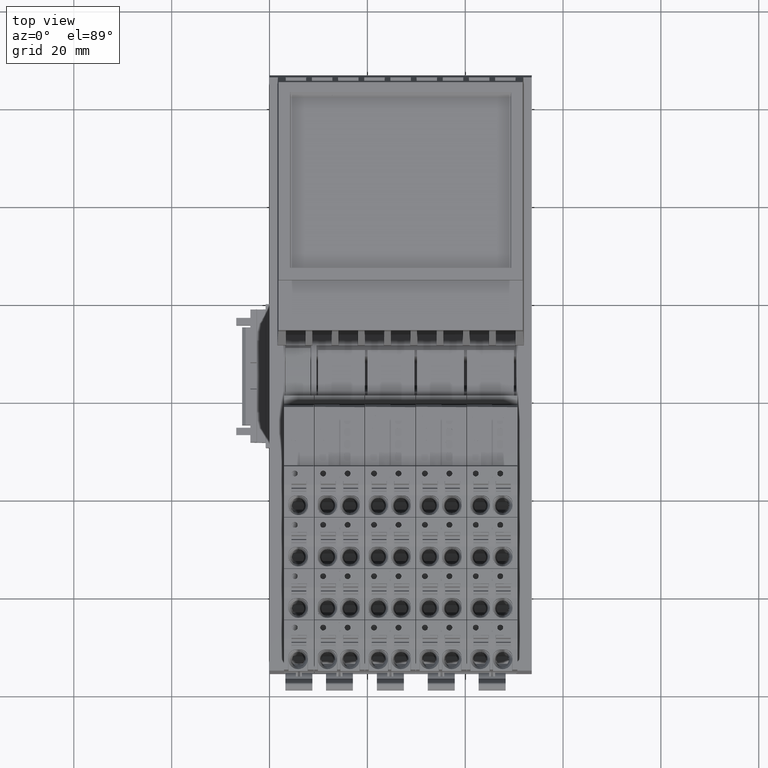
[diagram: clean part render]
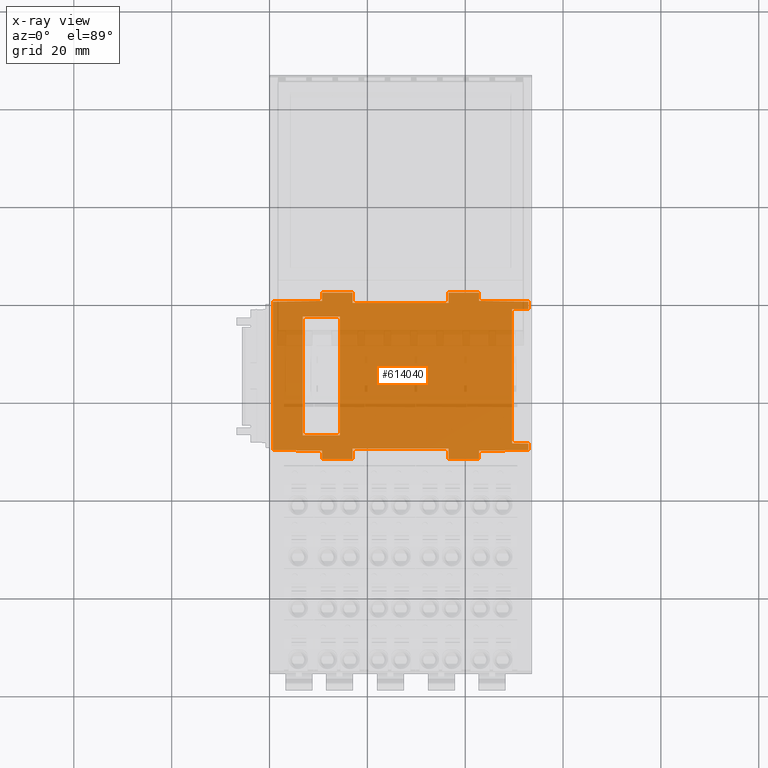
[diagram: x-ray — body ghosted, one internal face saturated and labeled with its STEP entity id]
A machine part, top view, then the same camera in x-ray: the body is ghosted and one INTERNAL B-rep face — a face not visible from any outside direction — is saturated and labeled: STEP entity #614040.
In plain terms, the highlighted planar face has unit normal (-0, 0, -1).
Its self-contained STEP definition (entity closure, byte-faithful):
#438050=CARTESIAN_POINT('',(12.0636000299226,3.00000000013541,
41.8499994326494));
#438060=VERTEX_POINT('',#438050);
#438090=CARTESIAN_POINT('',(12.0636000299226,3.00000000001806,0.));
#438100=DIRECTION('',(0.,0.,-1.));
#438110=VECTOR('',#438100,1.);
#438120=LINE('',#438090,#438110);
#438130=CARTESIAN_POINT('',(12.0636000299226,3.00000000014778,
49.4000005080898));
#438140=VERTEX_POINT('',#438130);
#438150=EDGE_CURVE('',#438140,#438060,#438120,.T.);
#438930=CARTESIAN_POINT('',(0.,3.00000000033756,3.29999998018775));
#438940=DIRECTION('',(1.,-2.19914054171354E-11,0.));
#438950=VECTOR('',#438940,1.);
#438960=LINE('',#438930,#438950);
#438970=CARTESIAN_POINT('',(-15.2364005170704,3.00000000067263,
3.29999998018815));
#438980=VERTEX_POINT('',#438970);
#438990=CARTESIAN_POINT('',(-13.7651986355336,3.00000000064027,
3.29999998018775));
#439000=VERTEX_POINT('',#438990);
#439010=EDGE_CURVE('',#438980,#439000,#438960,.T.);
#440250=CARTESIAN_POINT('',(-13.7363999718254,3.00000000064504,
6.59999998004287));
#440260=VERTEX_POINT('',#440250);
#440290=CARTESIAN_POINT('',(-13.7765435634887,3.00000000001806,2.));
#440300=DIRECTION('',(-0.00872653549837341,0.,-0.999961923064171));
#440310=VECTOR('',#440300,1.);
#440320=LINE('',#440290,#440310);
#440330=EDGE_CURVE('',#440260,#439000,#440320,.T.);
#445730=CARTESIAN_POINT('',(-12.2364002400526,3.00000000068217,
49.4000005116926));
#445740=VERTEX_POINT('',#445730);
#445770=CARTESIAN_POINT('',(-12.2364002486253,3.00000000001806,0.));
#445780=DIRECTION('',(1.73536011944371E-10,0.,1.));
#445790=VECTOR('',#445780,1.);
#445800=LINE('',#445770,#445790);
#445810=CARTESIAN_POINT('',(-12.2364002413628,3.0000000006698,
41.849999436867));
#445820=VERTEX_POINT('',#445810);
#445830=EDGE_CURVE('',#445820,#445740,#445800,.T.);
#446730=CARTESIAN_POINT('',(0.,3.00000000041307,49.4000005098784));
#446740=DIRECTION('',(1.,-2.19914054173783E-11,-1.48263795061431E-10));
#446750=VECTOR('',#446740,1.);
#446760=LINE('',#446730,#446750);
#446770=EDGE_CURVE('',#445740,#438140,#446760,.T.);
#452750=CARTESIAN_POINT('',(0.,3.0000000004007,41.8499994347432));
#452760=DIRECTION('',(1.,-2.19914054174198E-11,-1.73564604752226E-10));
#452770=VECTOR('',#452760,1.);
#452780=LINE('',#452750,#452770);
#452790=EDGE_CURVE('',#445820,#438060,#452780,.T.);
#475480=CARTESIAN_POINT('',(14.8132952578406,3.00000000007062,
39.2134579026107));
#475490=VERTEX_POINT('',#475480);
#476490=CARTESIAN_POINT('',(16.9088076921313,3.00000000002454,
39.2134579022762));
#476500=VERTEX_POINT('',#476490);
#476530=CARTESIAN_POINT('',(0.,3.00000000039639,39.2134579049748));
#476540=DIRECTION('',(-1.,2.19914054173969E-11,1.59598958123951E-10));
#476550=VECTOR('',#476540,1.);
#476560=LINE('',#476530,#476550);
#476570=EDGE_CURVE('',#476500,#475490,#476560,.T.);
#477290=CARTESIAN_POINT('',(15.0636419633857,3.00000000009179,
55.4999999797727));
#477300=VERTEX_POINT('',#477290);
#477330=CARTESIAN_POINT('',(16.032398064806,2.99999999997958,0.));
#477340=DIRECTION('',(-0.0174524064058977,2.02163620304832E-12,
0.999847695156939));
#477350=VECTOR('',#477340,1.);
#477360=LINE('',#477330,#477350);
#477370=CARTESIAN_POINT('',(15.2390653655859,3.00000000007147,
45.4499999805097));
#477380=VERTEX_POINT('',#477370);
#477390=EDGE_CURVE('',#477380,#477300,#477360,.T.);
#480420=CARTESIAN_POINT('',(-17.0903517184606,3.00000000072986,
13.3499999853127));
#480430=VERTEX_POINT('',#480420);
#480460=CARTESIAN_POINT('',(-17.1089880528678,3.0000000007084,
-2.45712130297309E-12));
#480470=DIRECTION('',(-0.00139597874673515,-1.60737983858319E-12,
-0.999999025621195));
#480480=VECTOR('',#480470,1.);
#480490=LINE('',#480460,#480480);
#480500=CARTESIAN_POINT('',(-17.0816456297798,3.00000000073988,
19.5865420659704));
#480510=VERTEX_POINT('',#480500);
#480520=EDGE_CURVE('',#480510,#480430,#480490,.T.);
#483630=CARTESIAN_POINT('',(-15.4118180944141,3.00000000074553,
45.449999986615));
#483640=VERTEX_POINT('',#483630);
#483670=CARTESIAN_POINT('',(-16.2051507951699,3.00000000068852,0.));
#483680=DIRECTION('',(0.0174524064373267,1.25403050923322E-12,
0.99984769515639));
#483690=VECTOR('',#483680,1.);
#483700=LINE('',#483670,#483690);
#483710=CARTESIAN_POINT('',(-15.2363946919051,3.00000000075813,
55.4999999854648));
#483720=VERTEX_POINT('',#483710);
#483730=EDGE_CURVE('',#483640,#483720,#483700,.T.);
#491490=CARTESIAN_POINT('',(13.7136000219277,3.00000000004138,
6.59999998004288));
#491500=VERTEX_POINT('',#491490);
#491530=CARTESIAN_POINT('',(0.,3.00000000034296,6.59999998004287));
#491540=DIRECTION('',(1.,-2.19914054171354E-11,0.));
#491550=VECTOR('',#491540,1.);
#491560=LINE('',#491530,#491550);
#491570=EDGE_CURVE('',#440260,#491500,#491560,.T.);
#523120=CARTESIAN_POINT('',(-15.1787636929297,3.00000000066595,0.));
#523130=DIRECTION('',(0.0174630410354328,-2.02186842219055E-12,
-0.999847509472217));
#523140=VECTOR('',#523130,1.);
#523150=LINE('',#523120,#523140);
#523160=CARTESIAN_POINT('',(-15.4119308462738,3.00000000069295,
13.3499999850448));
#523170=VERTEX_POINT('',#523160);
#523180=EDGE_CURVE('',#523170,#438980,#523150,.T.);
#560990=CARTESIAN_POINT('',(0.,3.00000000042306,55.4999999826025));
#561000=DIRECTION('',(-1.,2.19914054174432E-11,1.87860272533578E-10));
#561010=VECTOR('',#561000,1.);
#561020=LINE('',#560990,#561010);
#561030=EDGE_CURVE('',#477300,#483720,#561020,.T.);
#563130=CARTESIAN_POINT('',(14.8132952578429,3.00000000000639,0.));
#563140=DIRECTION('',(-5.72030444265809E-14,1.63808086864999E-12,1.));
#563150=VECTOR('',#563140,1.);
#563160=LINE('',#563130,#563150);
#563170=CARTESIAN_POINT('',(14.8132952578417,3.00000000003847,
19.5865420584575));
#563180=VERTEX_POINT('',#563170);
#563190=EDGE_CURVE('',#563180,#475490,#563160,.T.);
#563950=CARTESIAN_POINT('',(15.2391303615016,3.00000000001889,
13.349999980153));
#563960=VERTEX_POINT('',#563950);
#563990=CARTESIAN_POINT('',(15.0059632062174,3.00000000000215,0.));
#564000=DIRECTION('',(-0.0174630411870847,-1.25379594596782E-12,
-0.999847509469568));
#564010=VECTOR('',#564000,1.);
#564020=LINE('',#563990,#564010);
#564030=CARTESIAN_POINT('',(15.0636000308561,3.00000000000629,
3.29999998003107));
#564040=VERTEX_POINT('',#564030);
#564050=EDGE_CURVE('',#563960,#564040,#564020,.T.);
#564360=CARTESIAN_POINT('',(16.9088456967345,2.99999999999239,
19.5865420583375));
#564370=VERTEX_POINT('',#564360);
#565210=CARTESIAN_POINT('',(0.,3.00000000036423,19.5865420593056));
#565220=DIRECTION('',(-1.,2.19914054172292E-11,5.72539430343139E-11));
#565230=VECTOR('',#565220,1.);
#565240=LINE('',#565210,#565230);
#565250=EDGE_CURVE('',#564370,#563180,#565240,.T.);
#568210=CARTESIAN_POINT('',(0.,3.00000000033756,3.29999998003106));
#568220=DIRECTION('',(1.,-2.19914054171354E-11,0.));
#568230=VECTOR('',#568220,1.);
#568240=LINE('',#568210,#568230);
#568250=CARTESIAN_POINT('',(13.7712017356642,3.00000000003471,
3.29999998003106));
#568260=VERTEX_POINT('',#568250);
#568270=EDGE_CURVE('',#568260,#564040,#568240,.T.);
#568820=CARTESIAN_POINT('',(13.8288034490519,3.00000000001806,0.));
#568830=DIRECTION('',(-0.0174524062777089,0.,0.999847695159177));
#568840=VECTOR('',#568830,1.);
#568850=LINE('',#568820,#568840);
#568860=EDGE_CURVE('',#568260,#491500,#568850,.T.);
#600740=CARTESIAN_POINT('',(-14.9860957385915,3.00000000072595,
39.2134579073666));
#600750=VERTEX_POINT('',#600740);
#600830=CARTESIAN_POINT('',(-14.9860957419981,3.0000000006938,
19.58654206547));
#600840=VERTEX_POINT('',#600830);
#600870=CARTESIAN_POINT('',(-14.9860957454201,3.00000000001806,0.));
#600880=DIRECTION('',(1.73507257025058E-10,0.,1.));
#600890=VECTOR('',#600880,1.);
#600900=LINE('',#600870,#600890);
#600910=EDGE_CURVE('',#600840,#600750,#600900,.T.);
#602110=CARTESIAN_POINT('',(-17.6277453745119,3.00000000075189,
19.5865420661008));
#602120=DIRECTION('',(1.,-2.19914054175266E-11,-2.38786738615923E-10));
#602130=VECTOR('',#602120,1.);
#602140=LINE('',#602110,#602130);
#602150=EDGE_CURVE('',#480510,#600840,#602140,.T.);
#602640=CARTESIAN_POINT('',(0.,3.00000000035402,13.3499999825851));
#602650=DIRECTION('',(1.,-2.19914054173969E-11,-1.59598958123952E-10));
#602660=VECTOR('',#602650,1.);
#602670=LINE('',#602640,#602660);
#602680=EDGE_CURVE('',#480430,#523170,#602670,.T.);
#605440=CARTESIAN_POINT('',(0.,3.00000000039638,39.2134579049748));
#605450=DIRECTION('',(-1.,2.19914054173969E-11,1.59598958123952E-10));
#605460=VECTOR('',#605450,1.);
#605470=LINE('',#605440,#605460);
#605480=CARTESIAN_POINT('',(-17.0816456266486,3.00000000077204,
39.213457907701));
#605490=VERTEX_POINT('',#605480);
#605500=EDGE_CURVE('',#600750,#605490,#605470,.T.);
#607440=CARTESIAN_POINT('',(-17.090351712843,3.00000000078244,
45.4499999870158));
#607450=VERTEX_POINT('',#607440);
#607480=CARTESIAN_POINT('',(0.,3.0000000004066,45.4499999829348));
#607490=DIRECTION('',(-1.,2.19914054175266E-11,2.38786738615923E-10));
#607500=VECTOR('',#607490,1.);
#607510=LINE('',#607480,#607500);
#607520=EDGE_CURVE('',#483640,#607450,#607510,.T.);
#608890=CARTESIAN_POINT('',(-17.0269044351059,3.0000000007066,
-2.45712130297309E-12));
#608900=DIRECTION('',(0.00139597834837396,-1.66877890491558E-12,
-0.999999025621751));
#608910=VECTOR('',#608900,1.);
#608920=LINE('',#608890,#608910);
#608930=EDGE_CURVE('',#607450,#605490,#608920,.T.);
#609890=CARTESIAN_POINT('',(0.,3.0000000004066,45.4499999829418));
#609900=DIRECTION('',(1.,-2.19914054173969E-11,-1.59598958123952E-10));
#609910=VECTOR('',#609900,1.);
#609920=LINE('',#609890,#609910);
#609930=CARTESIAN_POINT('',(16.9088076931266,3.00000000003475,
45.4499999802432));
#609940=VERTEX_POINT('',#609930);
#609950=EDGE_CURVE('',#477380,#609940,#609920,.T.);
#613090=CARTESIAN_POINT('',(16.9175517824342,2.99999999998198,
13.3499999798851));
#613100=VERTEX_POINT('',#613090);
#613130=CARTESIAN_POINT('',(0.,3.00000000035402,13.3499999825851));
#613140=DIRECTION('',(-1.,2.19914054173969E-11,1.59598958123952E-10));
#613150=VECTOR('',#613140,1.);
#613160=LINE('',#613130,#613150);
#613170=EDGE_CURVE('',#613100,#563960,#613160,.T.);
#613570=CARTESIAN_POINT('',(14.251342384118,3.00000000007788,
36.0999999782943));
#613580=DIRECTION('',(-2.19914054171354E-11,-1.,1.63808086864873E-12));
#613590=DIRECTION('',(-1.,2.19914054175037E-11,2.24821223115981E-10));
#613600=AXIS2_PLACEMENT_3D('',#613570,#613580,#613590);
#613610=PLANE('',#613600);
#613620=ORIENTED_EDGE('',*,*,#446770,.F.);
#613630=ORIENTED_EDGE('',*,*,#438150,.F.);
#613640=ORIENTED_EDGE('',*,*,#452790,.T.);
#613650=ORIENTED_EDGE('',*,*,#445830,.F.);
#613660=EDGE_LOOP('',(#613650,#613640,#613630,#613620));
#613670=FACE_BOUND('',#613660,.T.);
#613680=ORIENTED_EDGE('',*,*,#565250,.F.);
#613690=ORIENTED_EDGE('',*,*,#563190,.F.);
#613700=ORIENTED_EDGE('',*,*,#476570,.T.);
#613710=CARTESIAN_POINT('',(16.9088076858728,2.9999999999603,
-2.45712130297309E-12));
#613720=DIRECTION('',(-1.59598945504258E-10,-1.63808086513893E-12,-1.));
#613730=VECTOR('',#613720,1.);
#613740=LINE('',#613710,#613730);
#613750=EDGE_CURVE('',#609940,#476500,#613740,.T.);
#613760=ORIENTED_EDGE('',*,*,#613750,.T.);
#613770=ORIENTED_EDGE('',*,*,#609950,.T.);
#613780=ORIENTED_EDGE('',*,*,#477390,.F.);
#613790=ORIENTED_EDGE('',*,*,#561030,.F.);
#613800=ORIENTED_EDGE('',*,*,#483730,.T.);
#613810=ORIENTED_EDGE('',*,*,#607520,.F.);
#613820=ORIENTED_EDGE('',*,*,#608930,.F.);
#613830=ORIENTED_EDGE('',*,*,#605500,.T.);
#613840=ORIENTED_EDGE('',*,*,#600910,.T.);
#613850=ORIENTED_EDGE('',*,*,#602150,.T.);
#613860=ORIENTED_EDGE('',*,*,#480520,.F.);
#613870=ORIENTED_EDGE('',*,*,#602680,.F.);
#613880=ORIENTED_EDGE('',*,*,#523180,.F.);
#613890=ORIENTED_EDGE('',*,*,#439010,.F.);
#613900=ORIENTED_EDGE('',*,*,#440330,.T.);
#613910=ORIENTED_EDGE('',*,*,#491570,.F.);
#613920=ORIENTED_EDGE('',*,*,#568860,.T.);
#613930=ORIENTED_EDGE('',*,*,#568270,.F.);
#613940=ORIENTED_EDGE('',*,*,#564050,.T.);
#613950=ORIENTED_EDGE('',*,*,#613170,.T.);
#613960=CARTESIAN_POINT('',(16.9361881104591,2.9999999999597,
-2.45712130297309E-12));
#613970=DIRECTION('',(-0.00139597826922713,1.66877890491589E-12,
0.999999025621861));
#613980=VECTOR('',#613970,1.);
#613990=LINE('',#613960,#613980);
#614000=EDGE_CURVE('',#613100,#564370,#613990,.T.);
#614010=ORIENTED_EDGE('',*,*,#614000,.F.);
#614020=EDGE_LOOP('',(#614010,#613950,#613940,#613930,#613920,#613910,
#613900,#613890,#613880,#613870,#613860,#613850,#613840,#613830,#613820,
#613810,#613800,#613790,#613780,#613770,#613760,#613700,#613690,#613680)
);
#614030=FACE_OUTER_BOUND('',#614020,.T.);
#614040=ADVANCED_FACE('',(#613670,#614030),#613610,.F.);